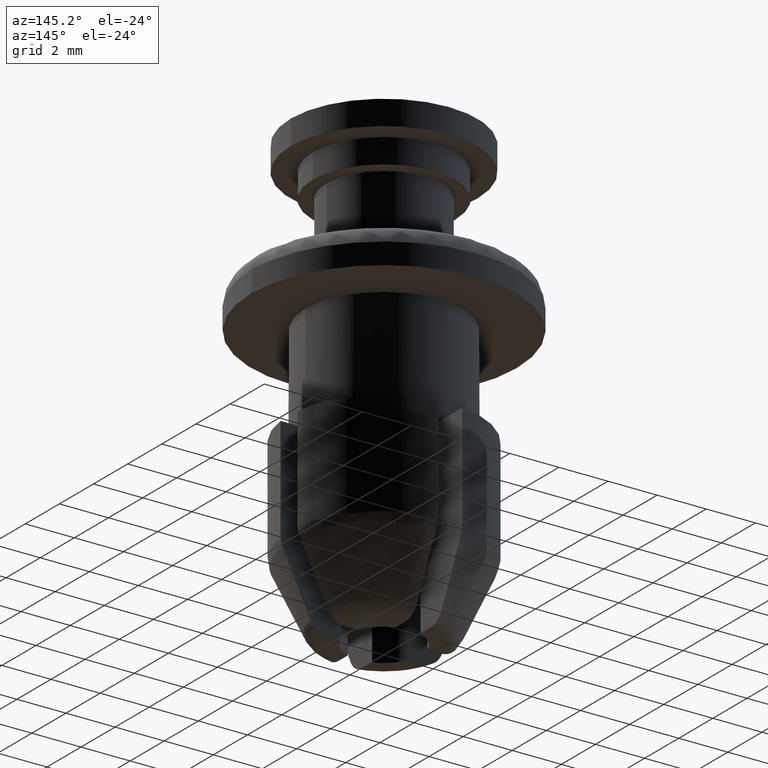
[diagram: clean part render]
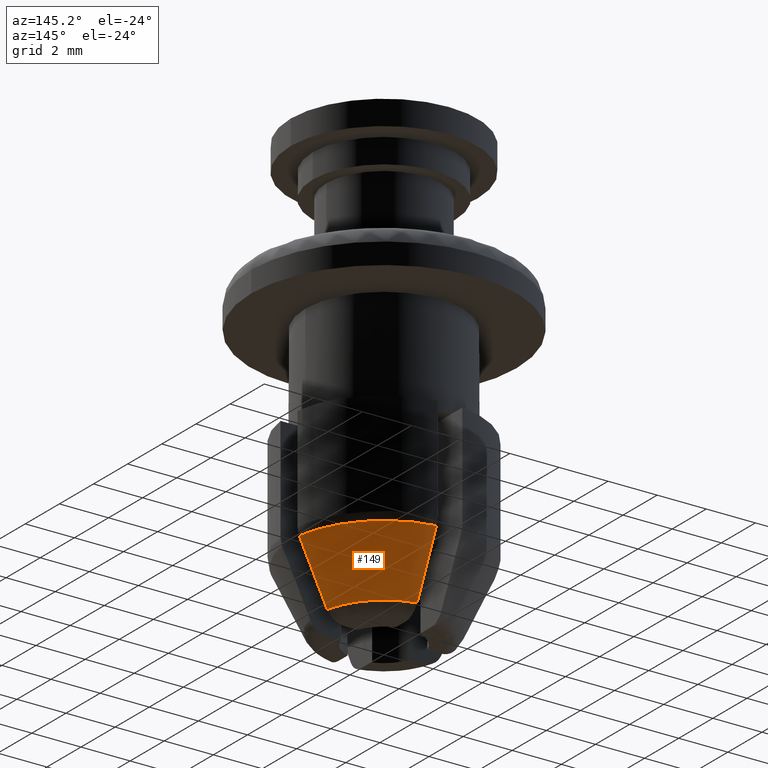
[diagram: same view with one face highlighted and labeled with its STEP entity id]
A machine part, auxiliary view. The second image highlights one B-rep face of the part: STEP entity #149.
In plain terms, the highlighted face is a freeform B-spline surface patch.
Its self-contained STEP definition (entity closure, byte-faithful):
#149=ADVANCED_FACE('',(#564),#563,.T.);
#563=( BOUNDED_SURFACE() B_SPLINE_SURFACE( 2,1,((#1250,#1251),(#1252,#1253),(#1254,#1255)), .UNSPECIFIED.,.F.,.F.,.F.) B_SPLINE_SURFACE_WITH_KNOTS((3,3),(2,2),(0.00000000000E+00,1.00000000000E+00),(0.00000000000E+00,1.00000000000E+00), .UNSPECIFIED. ) GEOMETRIC_REPRESENTATION_ITEM() RATIONAL_B_SPLINE_SURFACE(((1.00000000000E+00,1.00000000000E+00),(7.93286914708E-01,7.93286914708E-01),(1.00000000000E+00,1.00000000000E+00))) REPRESENTATION_ITEM('') SURFACE() );
#564=FACE_OUTER_BOUND('',#1256,.T.);
#1250=CARTESIAN_POINT('',(2.68268514984E+00,3.52884447649E-01,-1.30592680097E+01));
#1251=CARTESIAN_POINT('',(3.79721476473E+00,4.99491352885E-01,-1.06505161775E+01));
#1252=CARTESIAN_POINT('',(2.41184621184E+00,2.41184624601E+00,-1.30592680097E+01));
#1253=CARTESIAN_POINT('',(3.41385497528E+00,3.41385502364E+00,-1.06505161775E+01));
#1254=CARTESIAN_POINT('',(3.52884409643E-01,2.68268515484E+00,-1.30592680097E+01));
#1255=CARTESIAN_POINT('',(4.99491299089E-01,3.79721477180E+00,-1.06505161775E+01));
#1256=EDGE_LOOP('',(#1758,#1759,#1760,#1761));
#1758=ORIENTED_EDGE('',*,*,#2017,.F.);
#1759=ORIENTED_EDGE('',*,*,#2052,.F.);
#1760=ORIENTED_EDGE('',*,*,#1956,.F.);
#1761=ORIENTED_EDGE('',*,*,#2047,.T.);
#1956=EDGE_CURVE('',#2204,#2211,#2212,.T.);
#2017=EDGE_CURVE('',#2621,#2628,#2629,.T.);
#2047=EDGE_CURVE('',#2204,#2628,#2826,.T.);
#2052=EDGE_CURVE('',#2211,#2621,#2856,.T.);
#2204=VERTEX_POINT('',#3469);
#2211=VERTEX_POINT('',#3476);
#2212=(BOUNDED_CURVE() B_SPLINE_CURVE(3,(#3477,#3478,#3479,#3480),.UNSPECIFIED.,.F.,.F.) B_SPLINE_CURVE_WITH_KNOTS((4,4),(5.32152075698E-03,7.98447049075E-03),.UNSPECIFIED.) CURVE() GEOMETRIC_REPRESENTATION_ITEM() RATIONAL_B_SPLINE_CURVE((1.00000000000E+00,1.00000000000E+00,1.00000000000E+00,1.00000000000E+00)) REPRESENTATION_ITEM('') );
#2621=VERTEX_POINT('',#3763);
#2628=VERTEX_POINT('',#3770);
#2629=(BOUNDED_CURVE() B_SPLINE_CURVE(3,(#3771,#3772,#3773,#3774),.UNSPECIFIED.,.F.,.F.) B_SPLINE_CURVE_WITH_KNOTS((4,4),(3.59600571184E-03,6.25887595562E-03),.UNSPECIFIED.) CURVE() GEOMETRIC_REPRESENTATION_ITEM() RATIONAL_B_SPLINE_CURVE((1.00000000000E+00,1.00000000000E+00,1.00000000000E+00,1.00000000000E+00)) REPRESENTATION_ITEM('') );
#2826=CIRCLE('',#3900,3.82970000000E+00);
#2856=CIRCLE('',#3920,2.70602087899E+00);
#3469=CARTESIAN_POINT('',(5.00000000000E-01,3.79692007949E+00,-1.06510000000E+01));
#3476=CARTESIAN_POINT('',(5.00000000000E-01,2.65942644146E+00,-1.30587841873E+01));
#3477=CARTESIAN_POINT('',(5.00000000000E-01,3.79692007949E+00,-1.06510000000E+01));
#3478=CARTESIAN_POINT('',(5.00000000000E-01,3.41887801935E+00,-1.14541230100E+01));
#3479=CARTESIAN_POINT('',(5.00000000000E-01,3.04019102778E+00,-1.22569424928E+01));
#3480=CARTESIAN_POINT('',(5.00000000000E-01,2.65942644146E+00,-1.30587841873E+01));
#3763=CARTESIAN_POINT('',(2.65942644146E+00,5.00000000000E-01,-1.30587841873E+01));
#3770=CARTESIAN_POINT('',(3.79692007949E+00,5.00000000000E-01,-1.06510000000E+01));
#3771=CARTESIAN_POINT('',(2.65942644146E+00,5.00000000000E-01,-1.30587841873E+01));
#3772=CARTESIAN_POINT('',(3.04018898643E+00,5.00000000000E-01,-1.22569467916E+01));
#3773=CARTESIAN_POINT('',(3.41887766359E+00,5.00000000000E-01,-1.14541237658E+01));
#3774=CARTESIAN_POINT('',(3.79692007949E+00,5.00000000000E-01,-1.06510000000E+01));
#3897=CARTESIAN_POINT('',(0.00000000000E+00,0.00000000000E+00,-1.06510000000E+01));
#3898=DIRECTION('',(0.00000000000E+00,0.00000000000E+00,-1.00000000000E+00));
#3899=DIRECTION('',(1.00000000000E+00,-0.00000000000E+00,-0.00000000000E+00));
#3900=AXIS2_PLACEMENT_3D('',#3897,#3898,#3899);
#3917=CARTESIAN_POINT('',(0.00000000000E+00,0.00000000000E+00,-1.30587841873E+01));
#3918=DIRECTION('',(0.00000000000E+00,0.00000000000E+00,-1.00000000000E+00));
#3919=DIRECTION('',(1.00000000000E+00,-0.00000000000E+00,-0.00000000000E+00));
#3920=AXIS2_PLACEMENT_3D('',#3917,#3918,#3919);